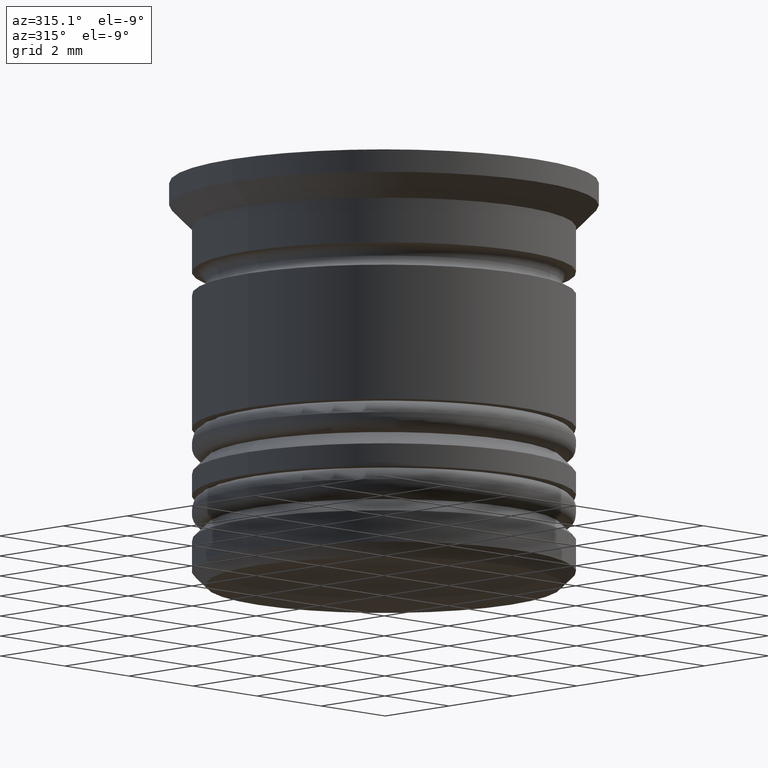
[diagram: clean part render]
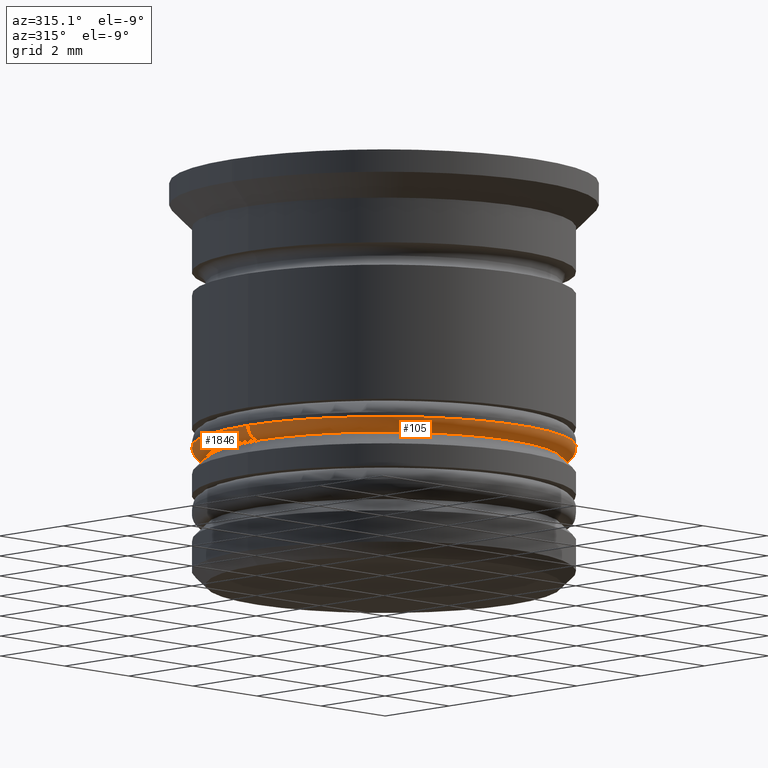
[diagram: same view with one multi-face feature highlighted, each face labeled with its STEP entity id]
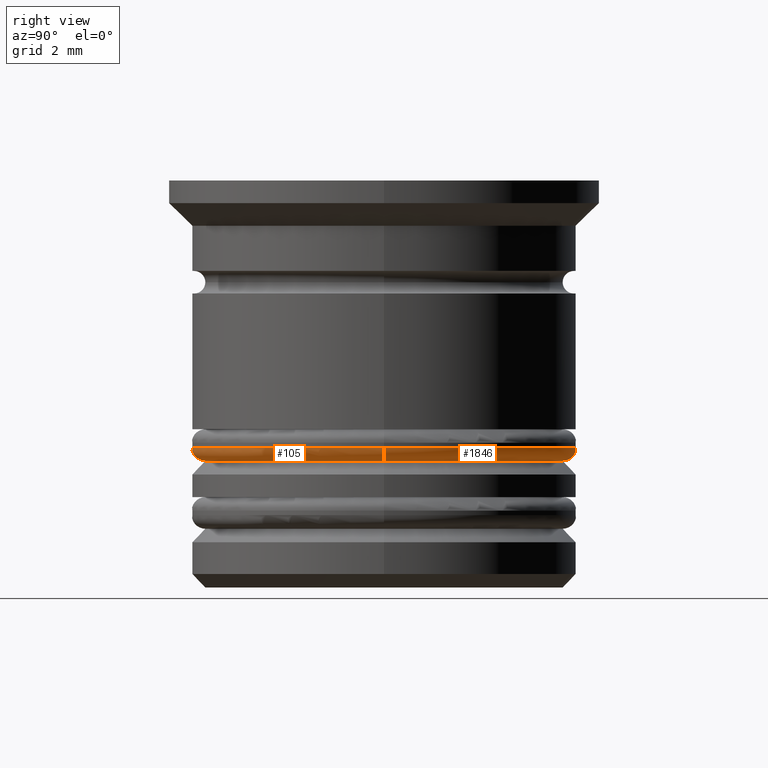
[diagram: same view with one multi-face feature highlighted, each face labeled with its STEP entity id]
A machine part, auxiliary view. The highlighted faces form ONE feature: a constant-radius fillet chain: 2 tangent blend faces with common blend radius 0.3 mm. The faces share edges in the B-rep.
A second angle (right view) of the same feature is appended — it is thin or edge-on in the first view.
Their STEP definitions:
[1] entity #105 (Torus):
#13 = CARTESIAN_POINT ( 'NONE',  ( 0.000000000000000000, 0.000000000000000000, -5.900000000000003908 ) ) ;
#23 = DIRECTION ( 'NONE',  ( -0.000000000000000000, -0.000000000000000000, -1.000000000000000000 ) ) ;
#88 = CIRCLE ( 'NONE', #1088, 0.2999999999999999334 ) ;
#105 = ADVANCED_FACE ( 'NONE', ( #1335 ), #1446, .T. ) ;
#150 = VERTEX_POINT ( 'NONE', #219 ) ;
#189 = VERTEX_POINT ( 'NONE', #1244 ) ;
#219 = CARTESIAN_POINT ( 'NONE',  ( -4.250000000000000000, 5.204748896376250699E-16, -5.900000000000003908 ) ) ;
#229 = DIRECTION ( 'NONE',  ( 0.000000000000000000, 0.000000000000000000, 1.000000000000000000 ) ) ;
#244 = CARTESIAN_POINT ( 'NONE',  ( 3.950000000000000178, 0.000000000000000000, -5.900000000000003908 ) ) ;
#281 = EDGE_LOOP ( 'NONE', ( #306, #897, #1885, #1499 ) ) ;
#306 = ORIENTED_EDGE ( 'NONE', *, *, #1127, .F. ) ;
#377 = AXIS2_PLACEMENT_3D ( 'NONE', #13, #1974, #1629 ) ;
#536 = CARTESIAN_POINT ( 'NONE',  ( 0.000000000000000000, 0.000000000000000000, -5.900000000000003908 ) ) ;
#724 = CIRCLE ( 'NONE', #377, 4.250000000000000000 ) ;
#811 = CARTESIAN_POINT ( 'NONE',  ( 4.250000000000000000, 0.000000000000000000, -5.900000000000003908 ) ) ;
#838 = CARTESIAN_POINT ( 'NONE',  ( 0.000000000000000000, 0.000000000000000000, -6.200000000000003730 ) ) ;
#887 = EDGE_CURVE ( 'NONE', #150, #1937, #724, .T. ) ;
#890 = CARTESIAN_POINT ( 'NONE',  ( -3.950000000000000178, 4.837354856632045057E-16, -5.900000000000003908 ) ) ;
#893 = DIRECTION ( 'NONE',  ( 1.000000000000000000, 0.000000000000000000, 0.000000000000000000 ) ) ;
#897 = ORIENTED_EDGE ( 'NONE', *, *, #1955, .F. ) ;
#921 = DIRECTION ( 'NONE',  ( 0.000000000000000000, -1.000000000000000000, 0.000000000000000000 ) ) ;
#970 = CIRCLE ( 'NONE', #1599, 3.950000000000000178 ) ;
#1087 = EDGE_CURVE ( 'NONE', #1211, #1937, #1403, .T. ) ;
#1088 = AXIS2_PLACEMENT_3D ( 'NONE', #890, #1980, #1817 ) ;
#1127 = EDGE_CURVE ( 'NONE', #189, #150, #88, .T. ) ;
#1207 = DIRECTION ( 'NONE',  ( 0.000000000000000000, 0.000000000000000000, -1.000000000000000000 ) ) ;
#1211 = VERTEX_POINT ( 'NONE', #1884 ) ;
#1244 = CARTESIAN_POINT ( 'NONE',  ( -3.950000000000000178, 5.021051876504148371E-16, -6.200000000000003730 ) ) ;
#1335 = FACE_OUTER_BOUND ( 'NONE', #281, .T. ) ;
#1403 = CIRCLE ( 'NONE', #1898, 0.2999999999999999334 ) ;
#1424 = DIRECTION ( 'NONE',  ( 1.000000000000000000, 0.000000000000000000, 0.000000000000000000 ) ) ;
#1446 = TOROIDAL_SURFACE ( 'NONE', #2036, 3.950000000000000178, 0.2999999999999999889 ) ;
#1499 = ORIENTED_EDGE ( 'NONE', *, *, #887, .F. ) ;
#1599 = AXIS2_PLACEMENT_3D ( 'NONE', #838, #23, #1424 ) ;
#1629 = DIRECTION ( 'NONE',  ( 1.000000000000000000, 0.000000000000000000, 0.000000000000000000 ) ) ;
#1817 = DIRECTION ( 'NONE',  ( -1.000000000000000000, 1.224646799147353207E-16, 0.000000000000000000 ) ) ;
#1884 = CARTESIAN_POINT ( 'NONE',  ( 3.950000000000000178, 0.000000000000000000, -6.200000000000003730 ) ) ;
#1885 = ORIENTED_EDGE ( 'NONE', *, *, #1087, .T. ) ;
#1898 = AXIS2_PLACEMENT_3D ( 'NONE', #244, #921, #1207 ) ;
#1937 = VERTEX_POINT ( 'NONE', #811 ) ;
#1955 = EDGE_CURVE ( 'NONE', #1211, #189, #970, .T. ) ;
#1974 = DIRECTION ( 'NONE',  ( 0.000000000000000000, 0.000000000000000000, 1.000000000000000000 ) ) ;
#1980 = DIRECTION ( 'NONE',  ( 1.224646799147353207E-16, 1.000000000000000000, -0.000000000000000000 ) ) ;
#2036 = AXIS2_PLACEMENT_3D ( 'NONE', #536, #229, #893 ) ;
[2] entity #1846 (Torus):
#19 = DIRECTION ( 'NONE',  ( -0.000000000000000000, -0.000000000000000000, -1.000000000000000000 ) ) ;
#88 = CIRCLE ( 'NONE', #1088, 0.2999999999999999334 ) ;
#123 = TOROIDAL_SURFACE ( 'NONE', #1279, 3.950000000000000178, 0.2999999999999999889 ) ;
#150 = VERTEX_POINT ( 'NONE', #219 ) ;
#158 = DIRECTION ( 'NONE',  ( 1.000000000000000000, 0.000000000000000000, 0.000000000000000000 ) ) ;
#189 = VERTEX_POINT ( 'NONE', #1244 ) ;
#217 = EDGE_LOOP ( 'NONE', ( #462, #407, #945, #444 ) ) ;
#219 = CARTESIAN_POINT ( 'NONE',  ( -4.250000000000000000, 5.204748896376250699E-16, -5.900000000000003908 ) ) ;
#244 = CARTESIAN_POINT ( 'NONE',  ( 3.950000000000000178, 0.000000000000000000, -5.900000000000003908 ) ) ;
#339 = DIRECTION ( 'NONE',  ( 0.000000000000000000, 0.000000000000000000, 1.000000000000000000 ) ) ;
#350 = CIRCLE ( 'NONE', #767, 3.950000000000000178 ) ;
#407 = ORIENTED_EDGE ( 'NONE', *, *, #1127, .T. ) ;
#444 = ORIENTED_EDGE ( 'NONE', *, *, #1087, .F. ) ;
#462 = ORIENTED_EDGE ( 'NONE', *, *, #1774, .F. ) ;
#721 = EDGE_CURVE ( 'NONE', #1937, #150, #905, .T. ) ;
#767 = AXIS2_PLACEMENT_3D ( 'NONE', #1255, #19, #158 ) ;
#811 = CARTESIAN_POINT ( 'NONE',  ( 4.250000000000000000, 0.000000000000000000, -5.900000000000003908 ) ) ;
#814 = DIRECTION ( 'NONE',  ( 0.000000000000000000, 0.000000000000000000, 1.000000000000000000 ) ) ;
#835 = DIRECTION ( 'NONE',  ( 1.000000000000000000, 0.000000000000000000, 0.000000000000000000 ) ) ;
#890 = CARTESIAN_POINT ( 'NONE',  ( -3.950000000000000178, 4.837354856632045057E-16, -5.900000000000003908 ) ) ;
#901 = AXIS2_PLACEMENT_3D ( 'NONE', #1478, #339, #835 ) ;
#905 = CIRCLE ( 'NONE', #901, 4.250000000000000000 ) ;
#921 = DIRECTION ( 'NONE',  ( 0.000000000000000000, -1.000000000000000000, 0.000000000000000000 ) ) ;
#945 = ORIENTED_EDGE ( 'NONE', *, *, #721, .F. ) ;
#1087 = EDGE_CURVE ( 'NONE', #1211, #1937, #1403, .T. ) ;
#1088 = AXIS2_PLACEMENT_3D ( 'NONE', #890, #1980, #1817 ) ;
#1127 = EDGE_CURVE ( 'NONE', #189, #150, #88, .T. ) ;
#1207 = DIRECTION ( 'NONE',  ( 0.000000000000000000, 0.000000000000000000, -1.000000000000000000 ) ) ;
#1211 = VERTEX_POINT ( 'NONE', #1884 ) ;
#1244 = CARTESIAN_POINT ( 'NONE',  ( -3.950000000000000178, 5.021051876504148371E-16, -6.200000000000003730 ) ) ;
#1255 = CARTESIAN_POINT ( 'NONE',  ( 0.000000000000000000, 0.000000000000000000, -6.200000000000003730 ) ) ;
#1279 = AXIS2_PLACEMENT_3D ( 'NONE', #2020, #814, #1421 ) ;
#1403 = CIRCLE ( 'NONE', #1898, 0.2999999999999999334 ) ;
#1421 = DIRECTION ( 'NONE',  ( 1.000000000000000000, 0.000000000000000000, 0.000000000000000000 ) ) ;
#1478 = CARTESIAN_POINT ( 'NONE',  ( 0.000000000000000000, 0.000000000000000000, -5.900000000000003908 ) ) ;
#1527 = FACE_OUTER_BOUND ( 'NONE', #217, .T. ) ;
#1774 = EDGE_CURVE ( 'NONE', #189, #1211, #350, .T. ) ;
#1817 = DIRECTION ( 'NONE',  ( -1.000000000000000000, 1.224646799147353207E-16, 0.000000000000000000 ) ) ;
#1846 = ADVANCED_FACE ( 'NONE', ( #1527 ), #123, .T. ) ;
#1884 = CARTESIAN_POINT ( 'NONE',  ( 3.950000000000000178, 0.000000000000000000, -6.200000000000003730 ) ) ;
#1898 = AXIS2_PLACEMENT_3D ( 'NONE', #244, #921, #1207 ) ;
#1937 = VERTEX_POINT ( 'NONE', #811 ) ;
#1980 = DIRECTION ( 'NONE',  ( 1.224646799147353207E-16, 1.000000000000000000, -0.000000000000000000 ) ) ;
#2020 = CARTESIAN_POINT ( 'NONE',  ( 0.000000000000000000, 0.000000000000000000, -5.900000000000003908 ) ) ;